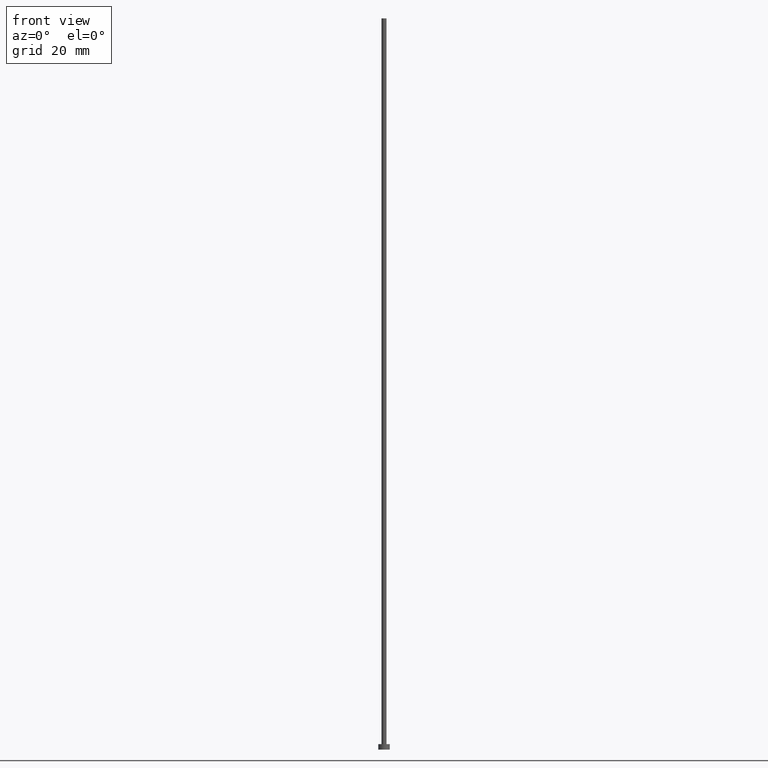
[diagram: clean part render]
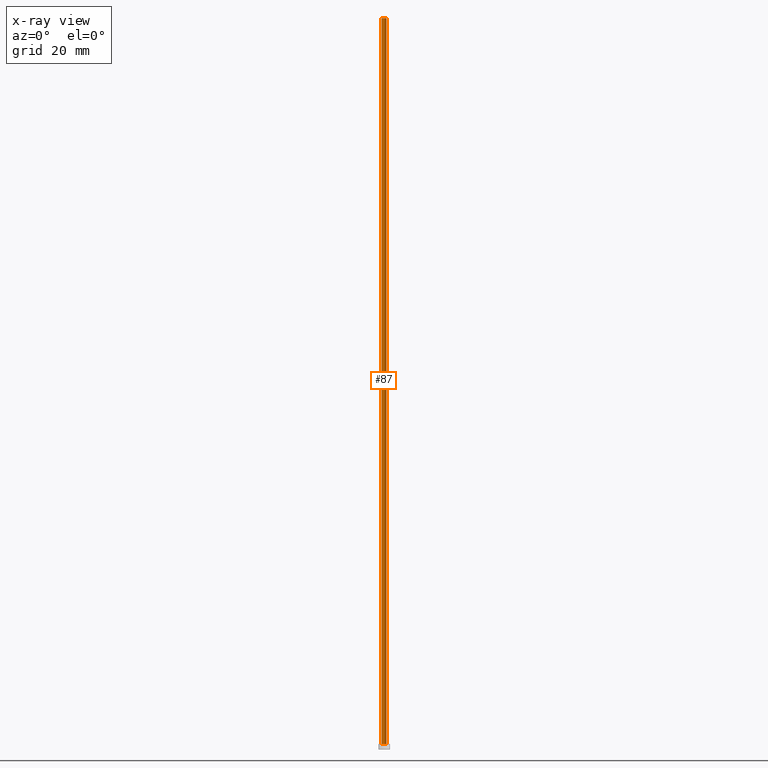
[diagram: x-ray — body ghosted, one internal face saturated and labeled with its STEP entity id]
A machine part, front view, then the same camera in x-ray: the body is ghosted and one INTERNAL B-rep face — a face not visible from any outside direction — is saturated and labeled: STEP entity #87.
In plain terms, the highlighted cylindrical surface (edge-blend (fillet) strip) has radius 0.55 mm, axis along (-0, -0, -1).
Its self-contained STEP definition (entity closure, byte-faithful):
#1 = EDGE_LOOP ( 'NONE', ( #121, #93, #18, #174 ) ) ;
#7 = VECTOR ( 'NONE', #156, 1000.000000000000000 ) ;
#8 = EDGE_CURVE ( 'NONE', #227, #137, #212, .T. ) ;
#18 = ORIENTED_EDGE ( 'NONE', *, *, #243, .T. ) ;
#32 = CARTESIAN_POINT ( 'NONE',  ( 0.000000000000000000, 0.000000000000000000, 1.199999999999999956 ) ) ;
#33 = DIRECTION ( 'NONE',  ( -0.000000000000000000, -0.000000000000000000, -1.000000000000000000 ) ) ;
#40 = EDGE_CURVE ( 'NONE', #173, #227, #203, .T. ) ;
#49 = VECTOR ( 'NONE', #33, 1000.000000000000000 ) ;
#58 = AXIS2_PLACEMENT_3D ( 'NONE', #211, #66, #119 ) ;
#66 = DIRECTION ( 'NONE',  ( 0.000000000000000000, 0.000000000000000000, 1.000000000000000000 ) ) ;
#73 = CARTESIAN_POINT ( 'NONE',  ( -0.5500000000000000444, 0.000000000000000000, 160.0000000000000284 ) ) ;
#82 = CYLINDRICAL_SURFACE ( 'NONE', #170, 0.5500000000000000444 ) ;
#87 = ADVANCED_FACE ( 'NONE', ( #193 ), #82, .T. ) ;
#93 = ORIENTED_EDGE ( 'NONE', *, *, #225, .T. ) ;
#106 = AXIS2_PLACEMENT_3D ( 'NONE', #32, #247, #206 ) ;
#111 = CIRCLE ( 'NONE', #106, 0.5500000000000000444 ) ;
#119 = DIRECTION ( 'NONE',  ( 1.000000000000000000, 0.000000000000000000, 0.000000000000000000 ) ) ;
#121 = ORIENTED_EDGE ( 'NONE', *, *, #40, .F. ) ;
#125 = DIRECTION ( 'NONE',  ( -1.000000000000000000, 0.000000000000000000, 0.000000000000000000 ) ) ;
#127 = CARTESIAN_POINT ( 'NONE',  ( 0.000000000000000000, 0.000000000000000000, 160.0000000000000284 ) ) ;
#137 = VERTEX_POINT ( 'NONE', #240 ) ;
#156 = DIRECTION ( 'NONE',  ( -0.000000000000000000, -0.000000000000000000, -1.000000000000000000 ) ) ;
#161 = CARTESIAN_POINT ( 'NONE',  ( -0.5500000000000000444, 0.000000000000000000, 160.0000000000000284 ) ) ;
#164 = CARTESIAN_POINT ( 'NONE',  ( 0.5500000000000000444, 6.735557395310442516E-17, 1.199999999999999956 ) ) ;
#169 = LINE ( 'NONE', #244, #49 ) ;
#170 = AXIS2_PLACEMENT_3D ( 'NONE', #127, #180, #125 ) ;
#171 = VERTEX_POINT ( 'NONE', #164 ) ;
#173 = VERTEX_POINT ( 'NONE', #182 ) ;
#174 = ORIENTED_EDGE ( 'NONE', *, *, #8, .F. ) ;
#180 = DIRECTION ( 'NONE',  ( -0.000000000000000000, -0.000000000000000000, -1.000000000000000000 ) ) ;
#182 = CARTESIAN_POINT ( 'NONE',  ( 0.5500000000000000444, 6.735557395310442516E-17, 160.0000000000000284 ) ) ;
#193 = FACE_OUTER_BOUND ( 'NONE', #1, .T. ) ;
#203 = CIRCLE ( 'NONE', #58, 0.5500000000000000444 ) ;
#206 = DIRECTION ( 'NONE',  ( 1.000000000000000000, 0.000000000000000000, 0.000000000000000000 ) ) ;
#211 = CARTESIAN_POINT ( 'NONE',  ( 0.000000000000000000, 0.000000000000000000, 160.0000000000000284 ) ) ;
#212 = LINE ( 'NONE', #161, #7 ) ;
#225 = EDGE_CURVE ( 'NONE', #173, #171, #169, .T. ) ;
#227 = VERTEX_POINT ( 'NONE', #73 ) ;
#240 = CARTESIAN_POINT ( 'NONE',  ( -0.5500000000000000444, 0.000000000000000000, 1.199999999999999956 ) ) ;
#243 = EDGE_CURVE ( 'NONE', #171, #137, #111, .T. ) ;
#244 = CARTESIAN_POINT ( 'NONE',  ( 0.5500000000000000444, 6.735557395310442516E-17, 160.0000000000000284 ) ) ;
#247 = DIRECTION ( 'NONE',  ( 0.000000000000000000, 0.000000000000000000, 1.000000000000000000 ) ) ;